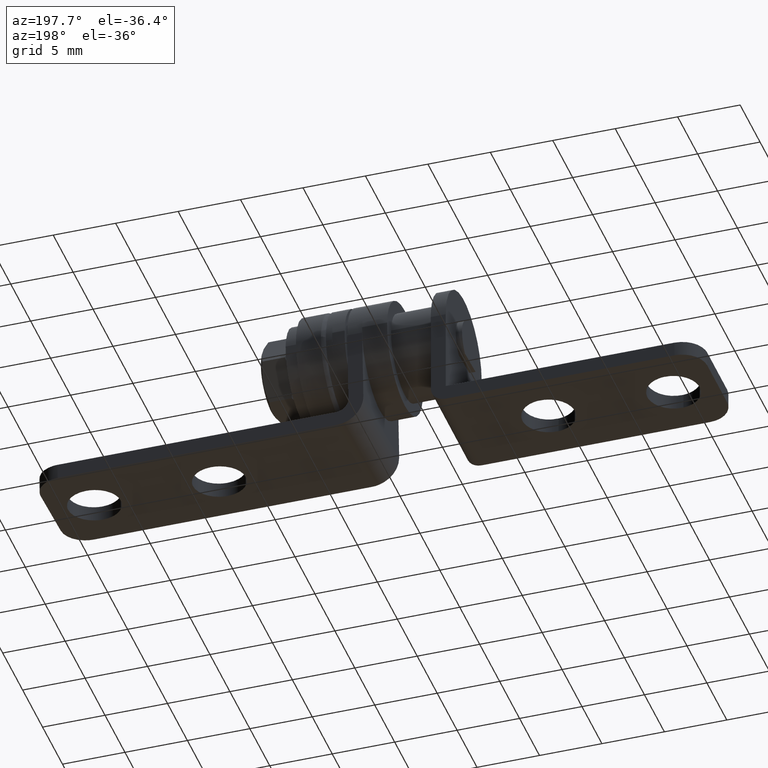
[diagram: clean part render]
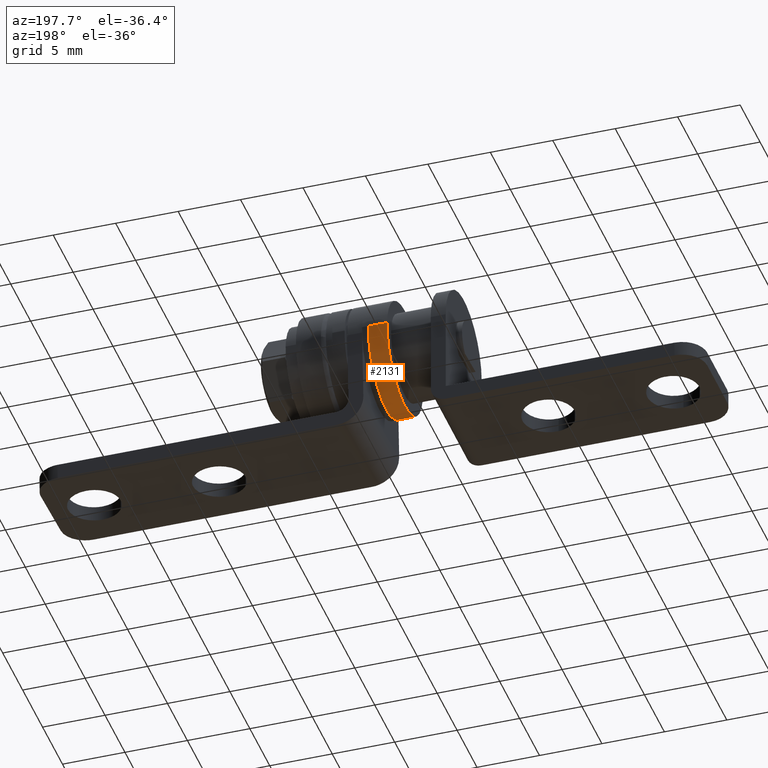
[diagram: same view with one face highlighted and labeled with its STEP entity id]
A machine part, auxiliary view. The second image highlights one B-rep face of the part: STEP entity #2131.
In plain terms, the highlighted face is a freeform B-spline surface patch.
Its self-contained STEP definition (entity closure, byte-faithful):
#1810=CARTESIAN_POINT('',(-0.499999999999858,-4.491606592880292,-0.274718427929563));
#1811=VERTEX_POINT('',#1810);
#1829=CARTESIAN_POINT('',(-0.499999999999858,3.460812E-015,-4.499999999983315));
#1830=VERTEX_POINT('',#1829);
#1831=CARTESIAN_POINT('',(-0.499999999999858,3.460812E-015,-4.499999999983315));
#1832=CARTESIAN_POINT('',(-0.499999999999858,-4.233177301037525,-4.499999999983313));
#1833=CARTESIAN_POINT('',(-0.499999999999858,-4.491606592880293,-0.274718427929564));
#1841=(BOUNDED_CURVE()B_SPLINE_CURVE(2,(#1831,#1832,#1833),.UNSPECIFIED.,.F.,.U.)B_SPLINE_CURVE_WITH_KNOTS((3,3),(0.500000000000000,0.739332962241057),.UNSPECIFIED.)CURVE()GEOMETRIC_REPRESENTATION_ITEM()RATIONAL_B_SPLINE_CURVE((1.0,0.719603993284234,0.976072041671248))REPRESENTATION_ITEM(''));
#1842=EDGE_CURVE('',#1830,#1811,#1841,.T.);
#1844=CARTESIAN_POINT('',(-0.499999999999858,4.491606592880299,0.274718427929563));
#1845=VERTEX_POINT('',#1844);
#1846=CARTESIAN_POINT('',(-0.499999999999858,4.491606592880300,0.274718427929563));
#1847=CARTESIAN_POINT('',(-0.499999999999858,4.499999999983318,0.137487434855036));
#1848=CARTESIAN_POINT('',(-0.499999999999858,4.499999999983318,0.0));
#1849=CARTESIAN_POINT('',(-0.499999999999858,4.499999999983318,-4.499999999983314));
#1850=CARTESIAN_POINT('',(-0.499999999999858,3.460812E-015,-4.499999999983315));
#1858=(BOUNDED_CURVE()B_SPLINE_CURVE(2,(#1846,#1847,#1848,#1849,#1850),.UNSPECIFIED.,.F.,.U.)B_SPLINE_CURVE_WITH_KNOTS((3,2,3),(0.239332962241057,0.250000000000000,0.500000000000000),.UNSPECIFIED.)CURVE()GEOMETRIC_REPRESENTATION_ITEM()RATIONAL_B_SPLINE_CURVE((0.976072041671249,0.987502787902314,1.0,0.707106781186547,1.0))REPRESENTATION_ITEM(''));
#1859=EDGE_CURVE('',#1845,#1830,#1858,.T.);
#2065=CARTESIAN_POINT('',(-0.462499999999861,4.491606592881750,0.274718427905838));
#2066=CARTESIAN_POINT('',(-0.462499999999861,4.766325020787588,-4.216888164975909));
#2067=CARTESIAN_POINT('',(-0.462499999999861,0.274718427905841,-4.491606592881746));
#2068=CARTESIAN_POINT('',(-0.462499999999861,-4.216888164975905,-4.766325020787583));
#2069=CARTESIAN_POINT('',(-0.462499999999861,-4.491606592881743,-0.274718427905838));
#2070=CARTESIAN_POINT('',(-2.038437499999742,4.491606592881750,0.274718427905838));
#2071=CARTESIAN_POINT('',(-2.038437499999743,4.766325020787588,-4.216888164975909));
#2072=CARTESIAN_POINT('',(-2.038437499999742,0.274718427905841,-4.491606592881746));
#2073=CARTESIAN_POINT('',(-2.038437499999743,-4.216888164975905,-4.766325020787583));
#2074=CARTESIAN_POINT('',(-2.038437499999742,-4.491606592881743,-0.274718427905838));
#2082=(BOUNDED_SURFACE()B_SPLINE_SURFACE(2,1,((#2065,#2070),(#2066,#2071),(#2067,#2072),(#2068,#2073),(#2069,#2074)),.UNSPECIFIED.,.F.,.F.,.U.)B_SPLINE_SURFACE_WITH_KNOTS((3,2,3),(2,2),(0.0,7.455844122688067,14.911688245376130),(0.0,1.0),.UNSPECIFIED.)GEOMETRIC_REPRESENTATION_ITEM()RATIONAL_B_SPLINE_SURFACE(((1.0,1.0),(0.707106781186548,0.707106781186548),(1.0,1.0),(0.707106781186548,0.707106781186548),(1.0,1.0)))REPRESENTATION_ITEM('')SURFACE());
#2083=ORIENTED_EDGE('',*,*,#1859,.T.);
#2084=ORIENTED_EDGE('',*,*,#1842,.T.);
#2085=CARTESIAN_POINT('',(-1.999999999999745,-4.491606592880292,-0.274718427929563));
#2086=VERTEX_POINT('',#2085);
#2087=CARTESIAN_POINT('',(-0.499999999999858,-4.491606592880292,-0.274718427929563));
#2088=CARTESIAN_POINT('',(-1.999999999999745,-4.491606592880292,-0.274718427929563));
#2089=QUASI_UNIFORM_CURVE('',1,(#2087,#2088),.UNSPECIFIED.,.F.,.U.);
#2090=EDGE_CURVE('',#1811,#2086,#2089,.T.);
#2091=ORIENTED_EDGE('',*,*,#2090,.T.);
#2092=CARTESIAN_POINT('',(-1.999999999999745,3.460812E-015,-4.499999999983315));
#2093=VERTEX_POINT('',#2092);
#2094=CARTESIAN_POINT('',(-1.999999999999745,3.460812E-015,-4.499999999983315));
#2095=CARTESIAN_POINT('',(-1.999999999999744,-4.233177301037525,-4.499999999983313));
#2096=CARTESIAN_POINT('',(-1.999999999999746,-4.491606592880293,-0.274718427929564));
#2104=(BOUNDED_CURVE()B_SPLINE_CURVE(2,(#2094,#2095,#2096),.UNSPECIFIED.,.F.,.U.)B_SPLINE_CURVE_WITH_KNOTS((3,3),(0.500000000000000,0.739332962241057),.UNSPECIFIED.)CURVE()GEOMETRIC_REPRESENTATION_ITEM()RATIONAL_B_SPLINE_CURVE((1.0,0.719603993284234,0.976072041671248))REPRESENTATION_ITEM(''));
#2105=EDGE_CURVE('',#2093,#2086,#2104,.T.);
#2106=ORIENTED_EDGE('',*,*,#2105,.F.);
#2107=CARTESIAN_POINT('',(-1.999999999999745,4.491606592880299,0.274718427929562));
#2108=VERTEX_POINT('',#2107);
#2109=CARTESIAN_POINT('',(-1.999999999999745,4.491606592880300,0.274718427929562));
#2110=CARTESIAN_POINT('',(-1.999999999999746,4.499999999983318,0.137487434855036));
#2111=CARTESIAN_POINT('',(-1.999999999999745,4.499999999983318,0.0));
#2112=CARTESIAN_POINT('',(-1.999999999999746,4.499999999983318,-4.499999999983314));
#2113=CARTESIAN_POINT('',(-1.999999999999745,3.460812E-015,-4.499999999983315));
#2121=(BOUNDED_CURVE()B_SPLINE_CURVE(2,(#2109,#2110,#2111,#2112,#2113),.UNSPECIFIED.,.F.,.U.)B_SPLINE_CURVE_WITH_KNOTS((3,2,3),(0.239332962241057,0.250000000000000,0.500000000000000),.UNSPECIFIED.)CURVE()GEOMETRIC_REPRESENTATION_ITEM()RATIONAL_B_SPLINE_CURVE((0.976072041671248,0.987502787902314,1.0,0.707106781186547,1.0))REPRESENTATION_ITEM(''));
#2122=EDGE_CURVE('',#2108,#2093,#2121,.T.);
#2123=ORIENTED_EDGE('',*,*,#2122,.F.);
#2124=CARTESIAN_POINT('',(-0.499999999999858,4.491606592880299,0.274718427929563));
#2125=CARTESIAN_POINT('',(-1.999999999999745,4.491606592880299,0.274718427929562));
#2126=QUASI_UNIFORM_CURVE('',1,(#2124,#2125),.UNSPECIFIED.,.F.,.U.);
#2127=EDGE_CURVE('',#1845,#2108,#2126,.T.);
#2128=ORIENTED_EDGE('',*,*,#2127,.F.);
#2129=EDGE_LOOP('',(#2083,#2084,#2091,#2106,#2123,#2128));
#2130=FACE_OUTER_BOUND('',#2129,.T.);
#2131=ADVANCED_FACE('',(#2130),#2082,.T.);